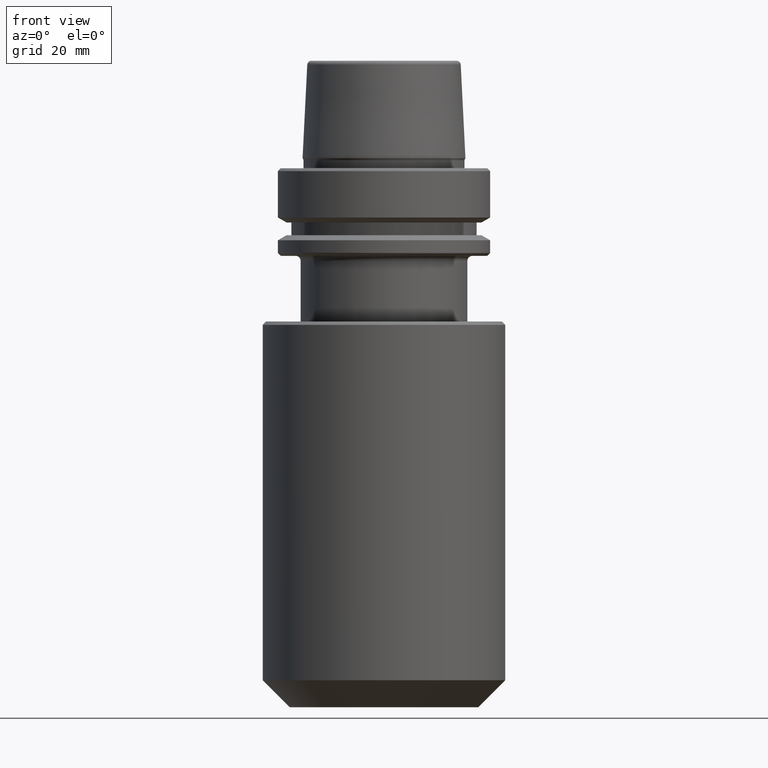
[diagram: clean part render]
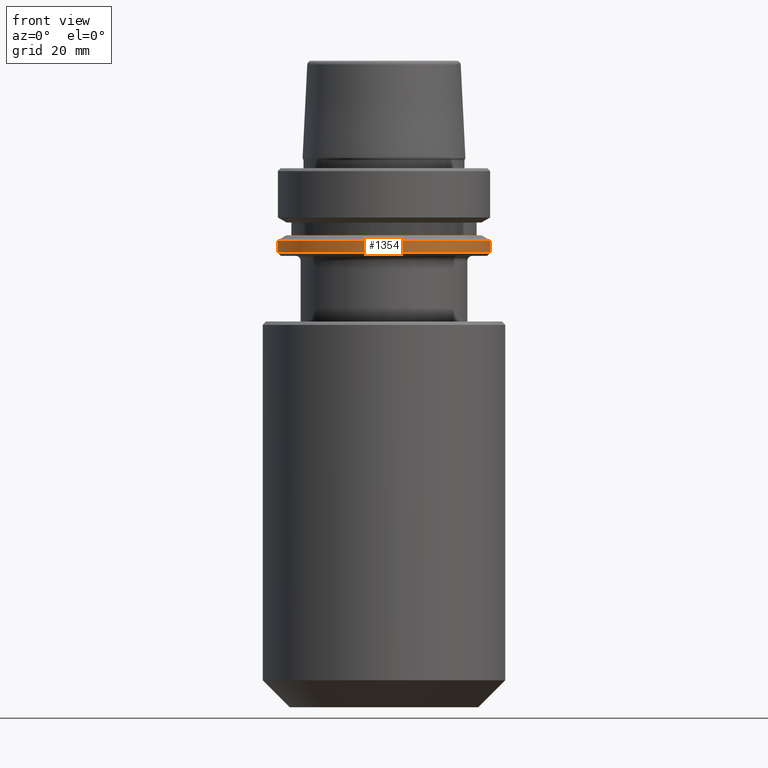
[diagram: same view with one face highlighted and labeled with its STEP entity id]
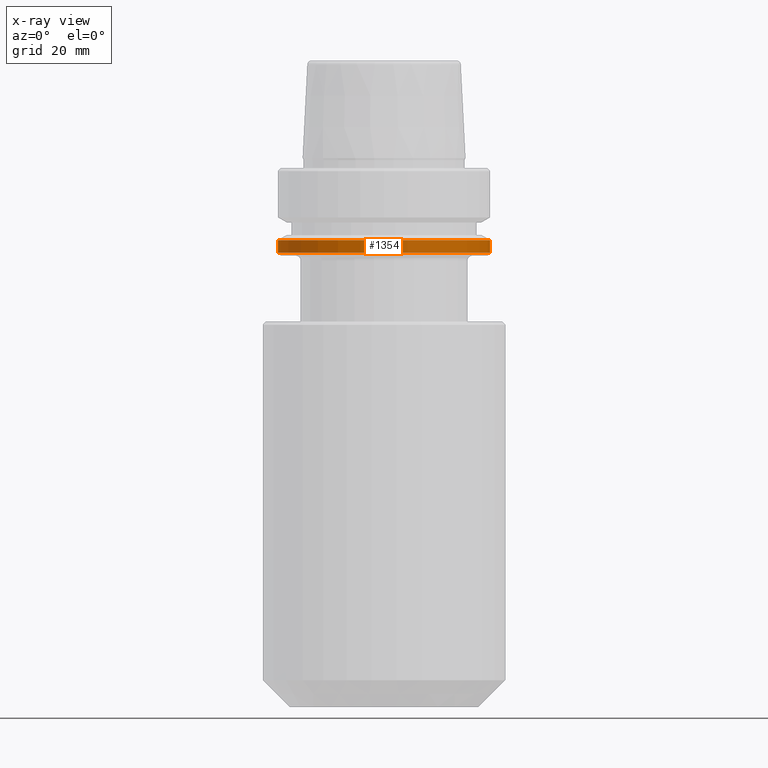
[diagram: x-ray of the same camera — body ghosted, the highlighted face saturated]
A machine part, front view. The second image highlights one B-rep face of the part: STEP entity #1354.
The next image is the same camera in x-ray: the body ghosted, the highlighted face saturated — about 0% of this face is hidden behind the body in this view.
In plain terms, the highlighted cylindrical surface (partial cylindrical patch) has radius 31.5 mm, axis along (-0, -0, 1).
Its self-contained STEP definition (entity closure, byte-faithful):
#15 = CARTESIAN_POINT ( 'NONE',  ( 31.50000000000000000, 3.857637417314162700E-015, -21.37749907475931700 ) ) ;
#24 = ORIENTED_EDGE ( 'NONE', *, *, #317, .T. ) ;
#45 = DIRECTION ( 'NONE',  ( -0.0000000000000000000, -0.0000000000000000000, 1.000000000000000000 ) ) ;
#62 = VERTEX_POINT ( 'NONE', #170 ) ;
#99 = CARTESIAN_POINT ( 'NONE',  ( -31.50000000000000000, 3.857637417314162700E-015, 78.96908074195309300 ) ) ;
#133 = FACE_OUTER_BOUND ( 'NONE', #545, .T. ) ;
#170 = CARTESIAN_POINT ( 'NONE',  ( -31.50000000000000000, 3.857637417314162700E-015, -25.03431457505077200 ) ) ;
#182 = DIRECTION ( 'NONE',  ( -0.0000000000000000000, -0.0000000000000000000, 1.000000000000000000 ) ) ;
#214 = VERTEX_POINT ( 'NONE', #992 ) ;
#252 = VERTEX_POINT ( 'NONE', #1194 ) ;
#315 = DIRECTION ( 'NONE',  ( -0.0000000000000000000, -0.0000000000000000000, 1.000000000000000000 ) ) ;
#317 = EDGE_CURVE ( 'NONE', #214, #824, #1304, .T. ) ;
#416 = ORIENTED_EDGE ( 'NONE', *, *, #952, .F. ) ;
#434 = AXIS2_PLACEMENT_3D ( 'NONE', #573, #315, #487 ) ;
#487 = DIRECTION ( 'NONE',  ( 1.000000000000000000, 0.0000000000000000000, 0.0000000000000000000 ) ) ;
#545 = EDGE_LOOP ( 'NONE', ( #416, #969, #24, #1330 ) ) ;
#570 = DIRECTION ( 'NONE',  ( -0.0000000000000000000, -0.0000000000000000000, 1.000000000000000000 ) ) ;
#573 = CARTESIAN_POINT ( 'NONE',  ( 0.0000000000000000000, 0.0000000000000000000, -25.03431457505077200 ) ) ;
#576 = CARTESIAN_POINT ( 'NONE',  ( 0.0000000000000000000, 0.0000000000000000000, -21.37749907475931700 ) ) ;
#585 = EDGE_CURVE ( 'NONE', #252, #824, #1036, .T. ) ;
#649 = EDGE_CURVE ( 'NONE', #62, #214, #726, .T. ) ;
#670 = CARTESIAN_POINT ( 'NONE',  ( 0.0000000000000000000, 0.0000000000000000000, 78.96908074195309300 ) ) ;
#712 = AXIS2_PLACEMENT_3D ( 'NONE', #670, #45, #1217 ) ;
#726 = CIRCLE ( 'NONE', #434, 31.50000000000000000 ) ;
#743 = DIRECTION ( 'NONE',  ( 1.000000000000000000, 0.0000000000000000000, 0.0000000000000000000 ) ) ;
#824 = VERTEX_POINT ( 'NONE', #15 ) ;
#952 = EDGE_CURVE ( 'NONE', #62, #252, #1388, .T. ) ;
#969 = ORIENTED_EDGE ( 'NONE', *, *, #649, .T. ) ;
#992 = CARTESIAN_POINT ( 'NONE',  ( 31.50000000000000000, 0.0000000000000000000, -25.03431457505077200 ) ) ;
#1019 = VECTOR ( 'NONE', #1389, 1000.000000000000000 ) ;
#1036 = CIRCLE ( 'NONE', #1367, 31.50000000000000000 ) ;
#1069 = VECTOR ( 'NONE', #570, 1000.000000000000000 ) ;
#1194 = CARTESIAN_POINT ( 'NONE',  ( -31.50000000000000000, 0.0000000000000000000, -21.37749907475931700 ) ) ;
#1217 = DIRECTION ( 'NONE',  ( 1.000000000000000000, 0.0000000000000000000, 0.0000000000000000000 ) ) ;
#1243 = CYLINDRICAL_SURFACE ( 'NONE', #712, 31.50000000000000000 ) ;
#1304 = LINE ( 'NONE', #1385, #1069 ) ;
#1330 = ORIENTED_EDGE ( 'NONE', *, *, #585, .F. ) ;
#1354 = ADVANCED_FACE ( 'NONE', ( #133 ), #1243, .T. ) ;
#1367 = AXIS2_PLACEMENT_3D ( 'NONE', #576, #182, #743 ) ;
#1385 = CARTESIAN_POINT ( 'NONE',  ( 31.50000000000000000, 0.0000000000000000000, 78.96908074195309300 ) ) ;
#1388 = LINE ( 'NONE', #99, #1019 ) ;
#1389 = DIRECTION ( 'NONE',  ( -0.0000000000000000000, -0.0000000000000000000, 1.000000000000000000 ) ) ;